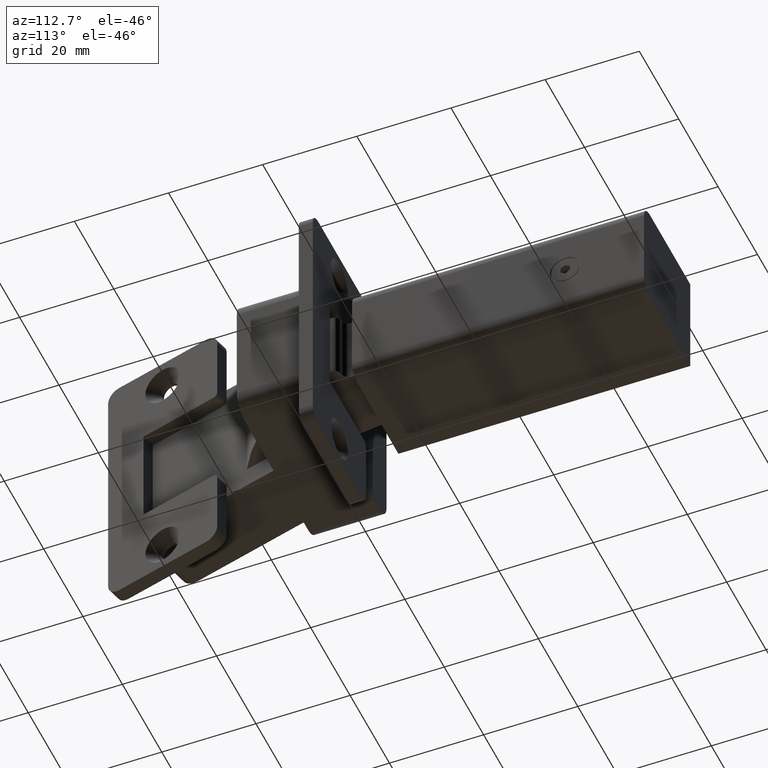
[diagram: clean part render]
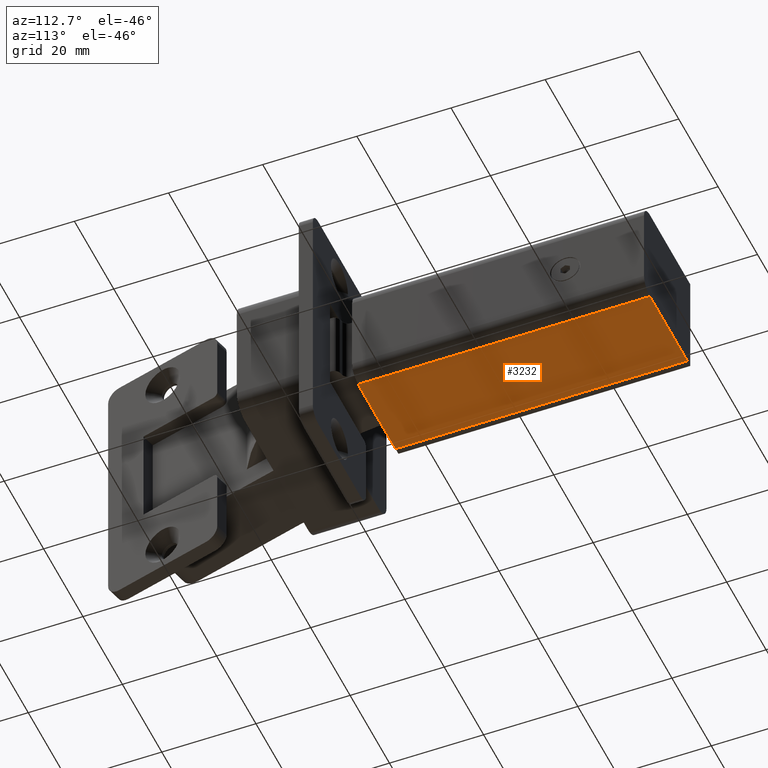
[diagram: same view with one face highlighted and labeled with its STEP entity id]
A machine part, auxiliary view. The second image highlights one B-rep face of the part: STEP entity #3232.
In plain terms, the highlighted planar face has unit normal (0, 0, -1).
Its self-contained STEP definition (entity closure, byte-faithful):
#302=FACE_OUTER_BOUND('',#493,.T.);
#493=EDGE_LOOP('',(#2465,#2466,#2467,#2468));
#732=LINE('',#4936,#1080);
#759=LINE('',#4994,#1107);
#760=LINE('',#4997,#1108);
#761=LINE('',#4998,#1109);
#1080=VECTOR('',#3964,1.);
#1107=VECTOR('',#4021,1.);
#1108=VECTOR('',#4024,1.);
#1109=VECTOR('',#4025,1.);
#1425=VERTEX_POINT('',#4933);
#1426=VERTEX_POINT('',#4935);
#1442=VERTEX_POINT('',#4992);
#1443=VERTEX_POINT('',#4996);
#1792=EDGE_CURVE('',#1425,#1426,#732,.T.);
#1821=EDGE_CURVE('',#1442,#1425,#759,.T.);
#1822=EDGE_CURVE('',#1443,#1426,#760,.T.);
#1823=EDGE_CURVE('',#1443,#1442,#761,.F.);
#2465=ORIENTED_EDGE('',*,*,#1822,.T.);
#2466=ORIENTED_EDGE('',*,*,#1792,.F.);
#2467=ORIENTED_EDGE('',*,*,#1821,.F.);
#2468=ORIENTED_EDGE('',*,*,#1823,.F.);
#3089=PLANE('',#3461);
#3232=ADVANCED_FACE('',(#302),#3089,.T.);
#3461=AXIS2_PLACEMENT_3D('',#4995,#4022,#4023);
#3964=DIRECTION('',(-1.,0.,0.));
#4021=DIRECTION('',(0.,1.,0.));
#4022=DIRECTION('center_axis',(0.,0.,-1.));
#4023=DIRECTION('ref_axis',(-1.,0.,0.));
#4024=DIRECTION('',(0.,1.,0.));
#4025=DIRECTION('',(-1.,0.,0.));
#4933=CARTESIAN_POINT('',(20.5,48.999999999998,-11.4999999999846));
#4935=CARTESIAN_POINT('',(1.5,48.999999999998,-11.4999999999846));
#4936=CARTESIAN_POINT('',(16.9372016825326,48.999999999998,-11.4999999999846));
#4992=CARTESIAN_POINT('',(20.5,-13.0000000000019,-11.4999999999846));
#4994=CARTESIAN_POINT('',(20.5,-14.1899529436373,-11.4999999999846));
#4995=CARTESIAN_POINT('Origin',(21.,-20.1899529436373,-11.4999999999846));
#4996=CARTESIAN_POINT('',(1.5,-13.0000000000019,-11.4999999999846));
#4997=CARTESIAN_POINT('',(1.5,4.34252352818021,-11.4999999999846));
#4998=CARTESIAN_POINT('',(16.7444668034308,-13.0000000000019,-11.4999999999846));